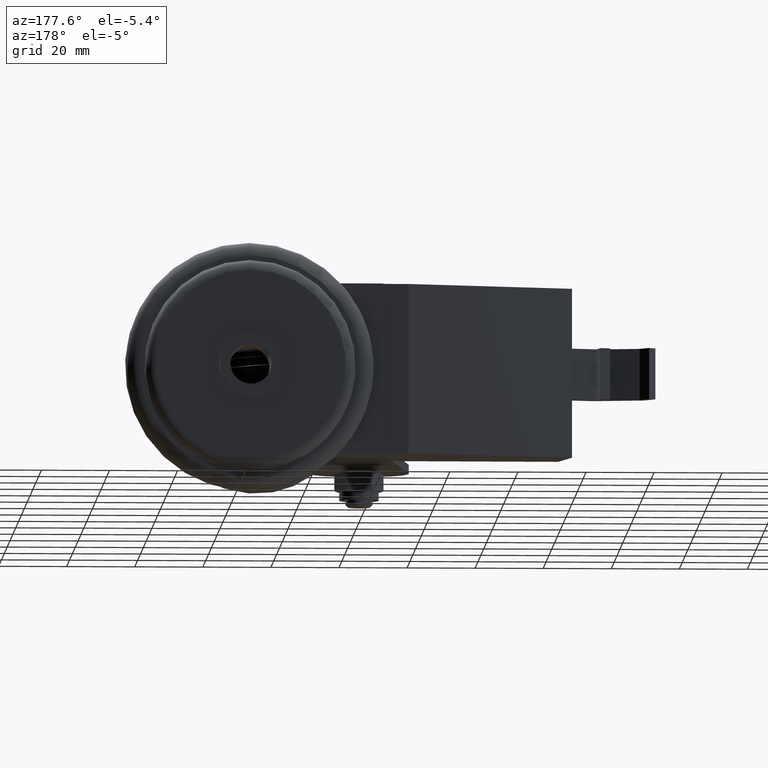
[diagram: clean part render]
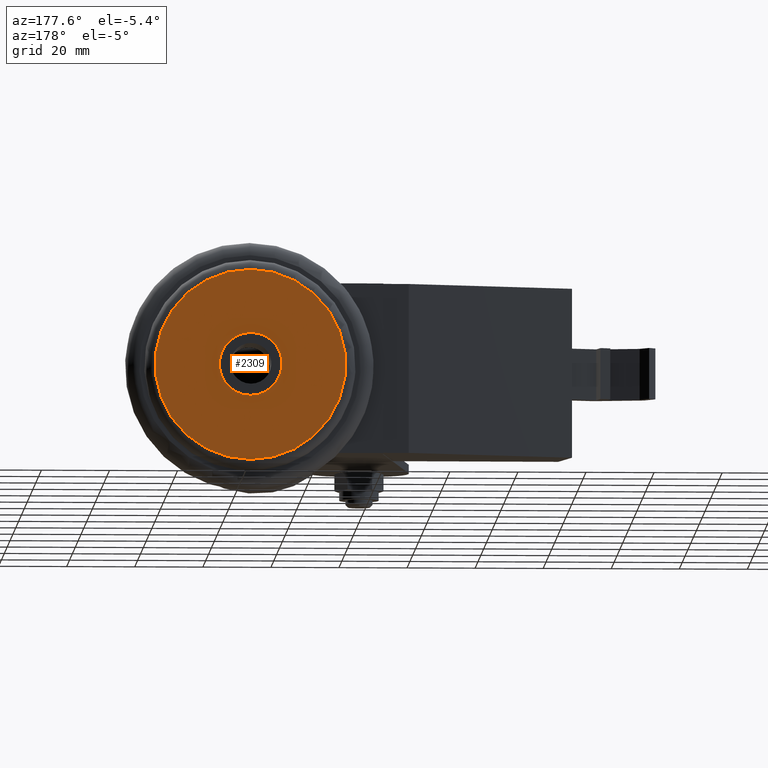
[diagram: same view with one face highlighted and labeled with its STEP entity id]
A machine part, auxiliary view. The second image highlights one B-rep face of the part: STEP entity #2309.
In plain terms, the highlighted planar face has unit normal (0, -1, 0).
Its self-contained STEP definition (entity closure, byte-faithful):
#186=FACE_BOUND('',#486,.T.);
#245=PLANE('',#2597);
#328=FACE_OUTER_BOUND('',#485,.T.);
#485=EDGE_LOOP('',(#1838));
#486=EDGE_LOOP('',(#1839));
#631=CIRCLE('',#2596,9.12499999999999);
#632=CIRCLE('',#2598,28.025);
#1126=VERTEX_POINT('',#3826);
#1127=VERTEX_POINT('',#3830);
#1376=EDGE_CURVE('',#1126,#1126,#631,.T.);
#1378=EDGE_CURVE('',#1127,#1127,#632,.T.);
#1838=ORIENTED_EDGE('',*,*,#1378,.F.);
#1839=ORIENTED_EDGE('',*,*,#1376,.T.);
#2309=ADVANCED_FACE('',(#328,#186),#245,.F.);
#2596=AXIS2_PLACEMENT_3D('',#3827,#3074,#3075);
#2597=AXIS2_PLACEMENT_3D('',#3829,#3077,#3078);
#2598=AXIS2_PLACEMENT_3D('',#3831,#3079,#3080);
#3074=DIRECTION('center_axis',(0.,-1.,0.));
#3075=DIRECTION('ref_axis',(0.,0.,-1.));
#3077=DIRECTION('center_axis',(0.,-1.,0.));
#3078=DIRECTION('ref_axis',(0.,0.,-1.));
#3079=DIRECTION('center_axis',(0.,-1.,0.));
#3080=DIRECTION('ref_axis',(0.,0.,-1.));
#3826=CARTESIAN_POINT('',(35.,74.7,9.12499999999999));
#3827=CARTESIAN_POINT('Origin',(35.,74.7,0.));
#3829=CARTESIAN_POINT('Origin',(44.125,74.7,0.));
#3830=CARTESIAN_POINT('',(35.,74.7,28.025));
#3831=CARTESIAN_POINT('Origin',(35.,74.7,0.));